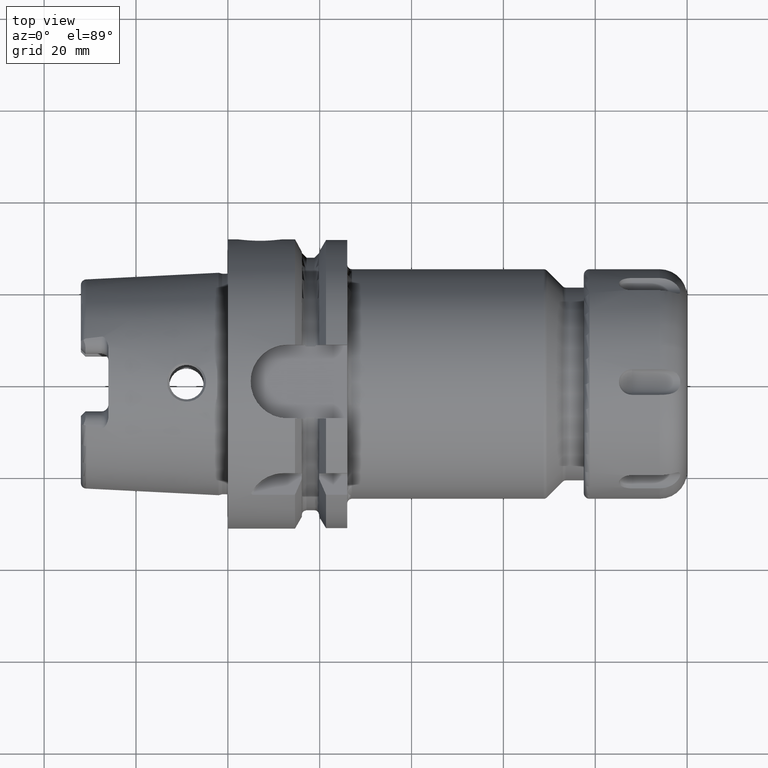
[diagram: clean part render]
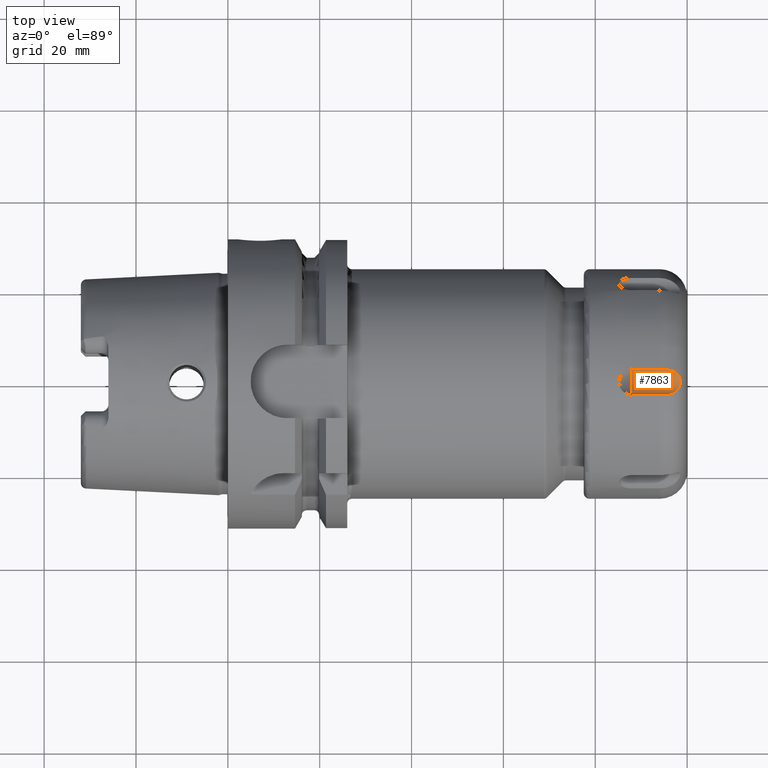
[diagram: same view with one face highlighted and labeled with its STEP entity id]
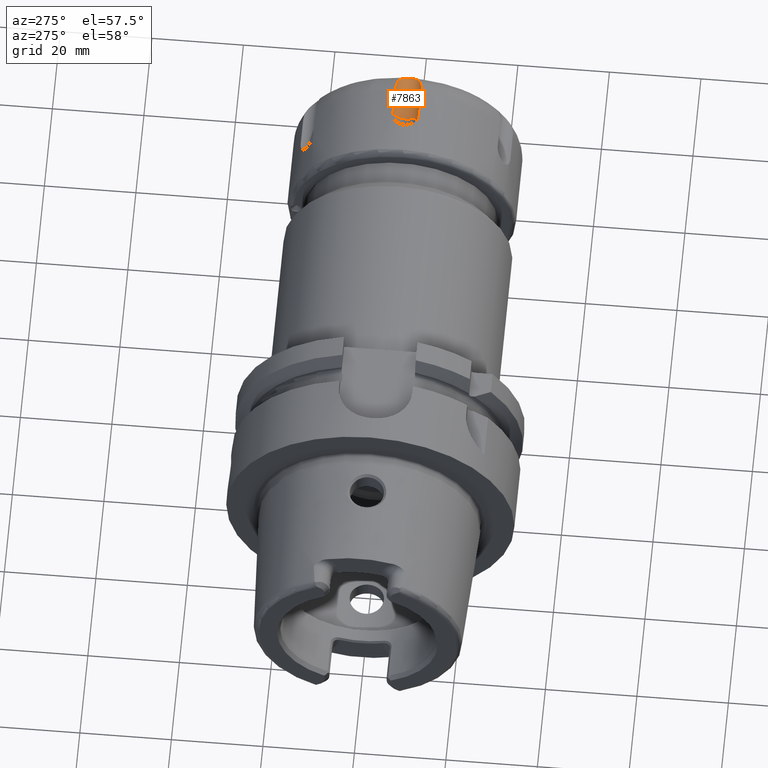
[diagram: same view with one face highlighted and labeled with its STEP entity id]
A machine part, top view. The second image highlights one B-rep face of the part: STEP entity #7863.
A second angle (auxiliary view) of the same face is appended — the face is thin or edge-on in the first view.
In plain terms, the highlighted cylindrical surface (edge-blend (fillet) strip) has radius 3 mm, axis along (1, 0, 0).
Its self-contained STEP definition (entity closure, byte-faithful):
#6640=DIRECTION('',(-1.E0,0.E0,0.E0));
#6641=VECTOR('',#6640,6.E0);
#6642=CARTESIAN_POINT('',(1.65E1,2.788676588829E0,2.484397880539E1));
#6643=LINE('',#6642,#6641);
#6644=DIRECTION('',(-1.E0,0.E0,0.E0));
#6645=VECTOR('',#6644,6.E0);
#6646=CARTESIAN_POINT('',(1.65E1,-2.788676588829E0,2.484397880539E1));
#6647=LINE('',#6646,#6645);
#6687=CARTESIAN_POINT('',(1.65E1,2.788676588829E0,2.484397880539E1));
#6688=CARTESIAN_POINT('',(1.694706257007E1,2.788676588829E0,2.484397880539E1));
#6689=CARTESIAN_POINT('',(1.777228444612E1,2.752928704125E0,2.474906643897E1));
#6690=CARTESIAN_POINT('',(1.880827481800E1,2.598699242378E0,2.443102066380E1));
#6691=CARTESIAN_POINT('',(1.963227743652E1,2.324782556568E0,2.402894412950E1));
#6692=CARTESIAN_POINT('',(2.024731428844E1,1.925239554784E0,2.362398936830E1));
#6693=CARTESIAN_POINT('',(2.065989941214E1,1.427982484067E0,2.328941427700E1));
#6694=CARTESIAN_POINT('',(2.090381678624E1,8.838675461664E-1,2.306300969865E1));
#6695=CARTESIAN_POINT('',(2.102163461927E1,2.982656604448E-1,2.294476407209E1));
#6696=CARTESIAN_POINT('',(2.102100654642E1,-3.045316302245E-1,
2.294540757610E1));
#6697=CARTESIAN_POINT('',(2.090198438464E1,-8.898656739259E-1,
2.306481197708E1));
#6698=CARTESIAN_POINT('',(2.065614663489E1,-1.434043662309E0,2.329270537285E1));
#6699=CARTESIAN_POINT('',(2.024251867477E1,-1.929290235210E0,2.362750071037E1));
#6700=CARTESIAN_POINT('',(1.962692984992E1,-2.327140057901E0,2.403195356973E1));
#6701=CARTESIAN_POINT('',(1.880364472632E1,-2.599596225315E0,2.443273169938E1));
#6702=CARTESIAN_POINT('',(1.776968653786E1,-2.753065328423E0,2.474945166371E1));
#6703=CARTESIAN_POINT('',(1.694611419548E1,-2.788676588829E0,2.484397880539E1));
#6704=CARTESIAN_POINT('',(1.65E1,-2.788676588829E0,2.484397880539E1));
#6706=CARTESIAN_POINT('',(1.05E1,0.E0,2.595E1));
#6707=DIRECTION('',(-1.E0,0.E0,0.E0));
#6708=DIRECTION('',(0.E0,9.295588629431E-1,-3.686737315350E-1));
#6709=AXIS2_PLACEMENT_3D('',#6706,#6707,#6708);
#7599=CARTESIAN_POINT('',(1.65E1,2.788676588829E0,2.484397880539E1));
#7600=CARTESIAN_POINT('',(1.05E1,2.788676588829E0,2.484397880539E1));
#7601=VERTEX_POINT('',#7599);
#7602=VERTEX_POINT('',#7600);
#7603=CARTESIAN_POINT('',(1.65E1,-2.788676588829E0,2.484397880539E1));
#7604=CARTESIAN_POINT('',(1.05E1,-2.788676588829E0,2.484397880539E1));
#7605=VERTEX_POINT('',#7603);
#7606=VERTEX_POINT('',#7604);
#7851=CARTESIAN_POINT('',(6.75E0,0.E0,2.595E1));
#7852=DIRECTION('',(1.E0,0.E0,0.E0));
#7853=DIRECTION('',(0.E0,0.E0,-1.E0));
#7854=AXIS2_PLACEMENT_3D('',#7851,#7852,#7853);
#7855=CYLINDRICAL_SURFACE('',#7854,3.E0);
#7856=ORIENTED_EDGE('',*,*,#7835,.T.);
#7857=ORIENTED_EDGE('',*,*,#7807,.T.);
#7859=ORIENTED_EDGE('',*,*,#7858,.F.);
#7860=ORIENTED_EDGE('',*,*,#7803,.F.);
#7861=EDGE_LOOP('',(#7856,#7857,#7859,#7860));
#7862=FACE_OUTER_BOUND('',#7861,.F.);
#7863=ADVANCED_FACE('',(#7862),#7855,.F.);
#6705=B_SPLINE_CURVE_WITH_KNOTS('',3,(#6687,#6688,#6689,#6690,#6691,#6692,#6693,
#6694,#6695,#6696,#6697,#6698,#6699,#6700,#6701,#6702,#6703,#6704),
.UNSPECIFIED.,.F.,.F.,(4,1,1,1,1,1,1,1,1,1,1,1,1,1,1,4),(0.E0,6.666666666667E-2,
1.333333333333E-1,2.E-1,2.666666666667E-1,3.333333333333E-1,4.E-1,
4.666666666667E-1,5.333333333333E-1,6.E-1,6.666666666667E-1,7.333333333333E-1,
8.E-1,8.666666666667E-1,9.333333333333E-1,1.E0),.UNSPECIFIED.);
#6710=CIRCLE('',#6709,3.E0);
#7803=EDGE_CURVE('',#7601,#7602,#6643,.T.);
#7807=EDGE_CURVE('',#7605,#7606,#6647,.T.);
#7835=EDGE_CURVE('',#7601,#7605,#6705,.T.);
#7858=EDGE_CURVE('',#7602,#7606,#6710,.T.);